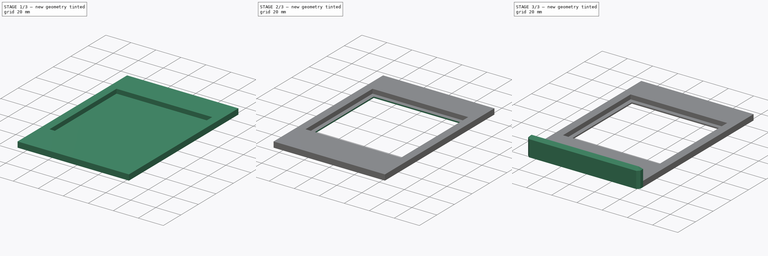
[diagram: build sequence overview — one tinted view per stage of 3, left to right]
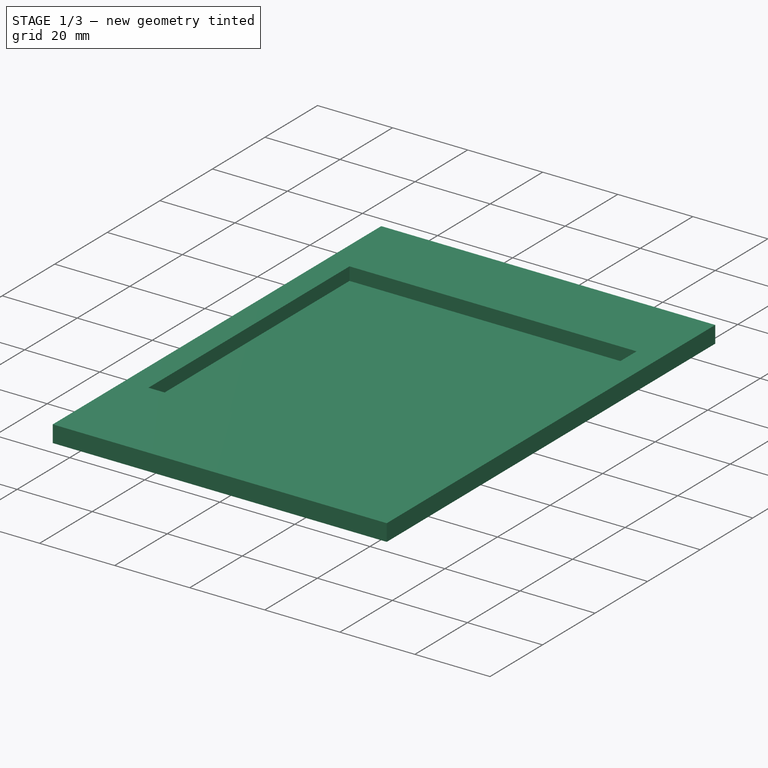
[diagram: stage 1 of 3 — iso view after this stage's code; geometry added in this stage tinted green]
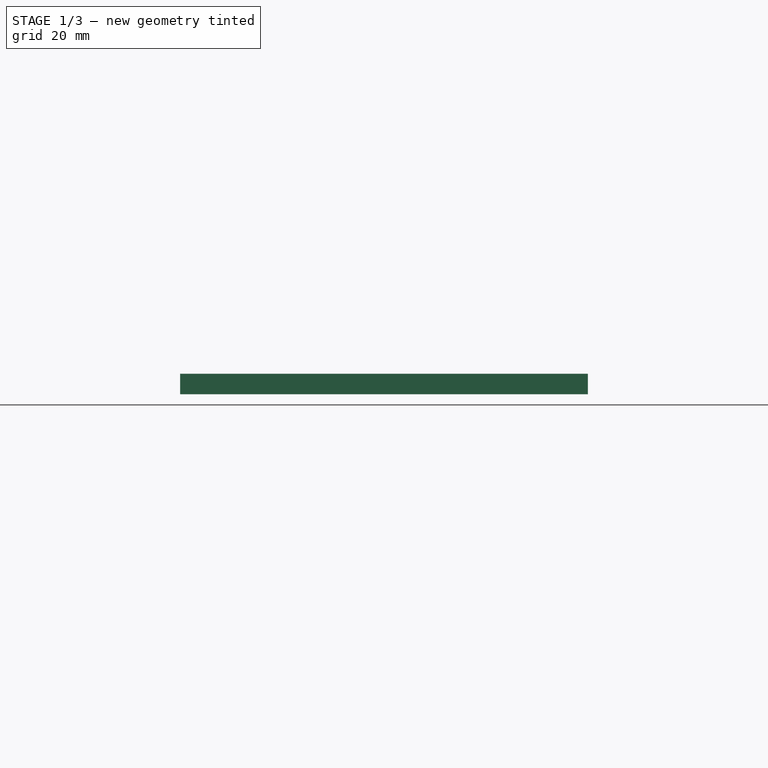
[diagram: stage 1 of 3 — front view after this stage's code; geometry added in this stage tinted green]
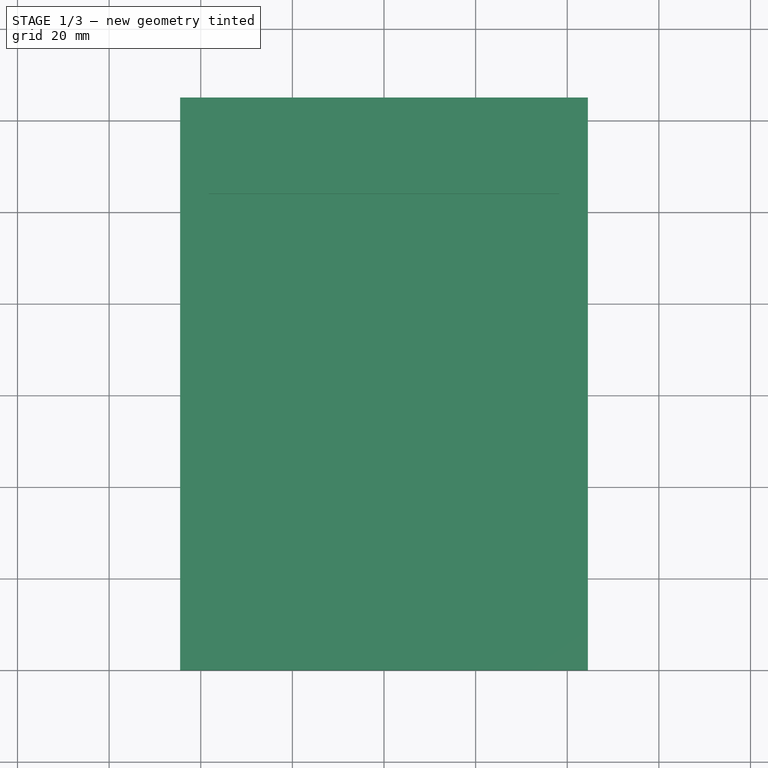
[diagram: stage 1 of 3 — top view after this stage's code; geometry added in this stage tinted green]
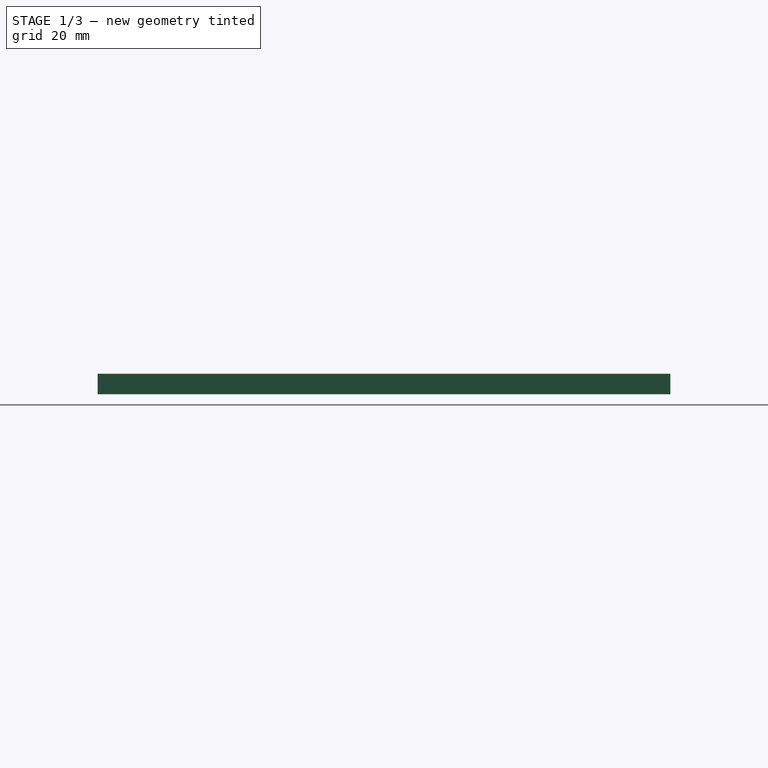
[diagram: stage 1 of 3 — right view after this stage's code; geometry added in this stage tinted green]
FCSTD DOCUMENT  (FreeCAD 2023.521R14555 (Git shallow))
Label: Lens_Filter
License: All rights reserved
objects: Sketcher::SketchObject×4, PartDesign::Pad×2, PartDesign::Pocket×2, PartDesign::Chamfer×1, PartDesign::Body×1, PartDesign::CoordinateSystem×1, App::Part×1
note: 25 computed .brp shape members not serialized (recipe doc carries the construction recipe); baked Part::Feature solids carry a one-line shape summary decoded from their .brp

FEATURE [Sketcher::SketchObject] Sketch
  ArcFitTolerance = 1e-06
  AttachmentSupport = -> [XZ_Plane]
  ExternalBSplineMaxDegree = 5
  ExternalBSplineTolerance = 0.0001
  FullyConstrained = true
  InternalTolerance = 1e-06
  InvalidShape = false
  MakeInternals = false
  MapMode = 5
  Placement = pos=(0,0,0) rot=(1,0,0;1.5708rad)
  Support = -> [XZ_Plane]
  TreeRank = 14
  ValidateShape = false
  sketch-geometry (5):
    g0: LineSegment StartX=-44.5 StartY=-2.25 StartZ=0 EndX=-44.5 EndY=2.25 EndZ=0
    g1: LineSegment StartX=-44.5 StartY=2.25 StartZ=0 EndX=44.5 EndY=2.25 EndZ=0
    g2: LineSegment StartX=44.5 StartY=2.25 StartZ=0 EndX=44.5 EndY=-2.25 EndZ=0
    g3: LineSegment StartX=44.5 StartY=-2.25 StartZ=0 EndX=-44.5 EndY=-2.25 EndZ=0
    g4: GeomPoint [constr] X=0 Y=0 Z=0
  constraints (12):
    c: Coincident(g0,g1)
    c: Coincident(g1,g2)
    c: Coincident(g2,g3)
    c: Coincident(g3,g0)
    c: Horizontal(g1)
    c: Horizontal(g3)
    c: Vertical(g0)
    c: Vertical(g2)
    c: Symmetric(g1,g0,g4)
    c: Coincident(g4,g-1)
    c: DistanceX(g1,g1) = 89
    c: DistanceY(g2,g2) = 4.5
FEATURE [PartDesign::Pad] Pad
  AddSubType = 0
  AlongSketchNormal = false
  AutoTaperInnerAngle = true
  CheckUpToFaceLimits = true
  ClaimChildren = false
  Direction = (0,-1,-2e-16)
  Fit = 0
  FitJoin = 0
  InnerFit = 0
  InnerFitJoin = 0
  InvalidShape = false
  Length = 125
  Length2 = 10
  Linearize = true
  NewSolid = false
  Profile = -> Sketch
  ReferenceAxis = -> Sketch [N_Axis]
  Reversed = true
  Suppress = false
  TaperInnerAngle = 0
  TaperInnerAngleRev = 0
  TreeRank = 15
  Type = 0
  ValidateShape = true
  _ProfileBasedVersion = 1
FEATURE [Sketcher::SketchObject] Sketch001
  ArcFitTolerance = 1e-06
  AttachmentSupport = -> [Pad]
  ExternalBSplineMaxDegree = 5
  ExternalBSplineTolerance = 0.0001
  FullyConstrained = true
  InternalTolerance = 1e-06
  InvalidShape = false
  MakeInternals = false
  MapMode = 5
  Placement = pos=(0,-5e-16,2.25) rot=(0,0,1;0rad)
  Support = -> [Pad]
  TreeRank = 16
  ValidateShape = false
  sketch-geometry (5):
    g0: LineSegment StartX=-38.25 StartY=104 StartZ=0 EndX=-38.25 EndY=27.5 EndZ=0
    g1: LineSegment StartX=-38.25 StartY=27.5 StartZ=0 EndX=38.25 EndY=27.5 EndZ=0
    g2: LineSegment StartX=38.25 StartY=27.5 StartZ=0 EndX=38.25 EndY=104 EndZ=0
    g3: LineSegment StartX=38.25 StartY=104 StartZ=0 EndX=-38.25 EndY=104 EndZ=0
    g4: GeomPoint [constr] X=0 Y=65.75 Z=0
  constraints (13):
    c: Coincident(g0,g1)
    c: Coincident(g1,g2)
    c: Coincident(g2,g3)
    c: Coincident(g3,g0)
    c: Horizontal(g1)
    c: Horizontal(g3)
    c: Vertical(g0)
    c: Vertical(g2)
    c: Symmetric(g1,g0,g4)
    c: Vertical(g4,g-1)
    c: DistanceY(g2,g2) = 76.5
    c: Equal(g2,g3)
    c: DistanceY(g-1,g0) = 27.5
FEATURE [PartDesign::Pocket] Pocket
  AddSubType = 1
  AlongSketchNormal = false
  AutoTaperInnerAngle = true
  BaseFeature = -> Pad
  CheckUpToFaceLimits = true
  ClaimChildren = false
  Direction = (0,2e-16,-1)
  Fit = 0
  FitJoin = 0
  InnerFit = 0
  InnerFitJoin = 0
  InvalidShape = false
  Length = 0
  Length2 = 10
  Linearize = true
  NewSolid = false
  Offset = -1
  Profile = -> Sketch001
  ReferenceAxis = -> Sketch001 [N_Axis]
  Suppress = false
  TaperInnerAngle = 0
  TaperInnerAngleRev = 0
  TreeRank = 17
  Type = 3
  UpToFace = -> Pad [Face4]
  ValidateShape = true
  _ProfileBasedVersion = 1
  _Version = 1
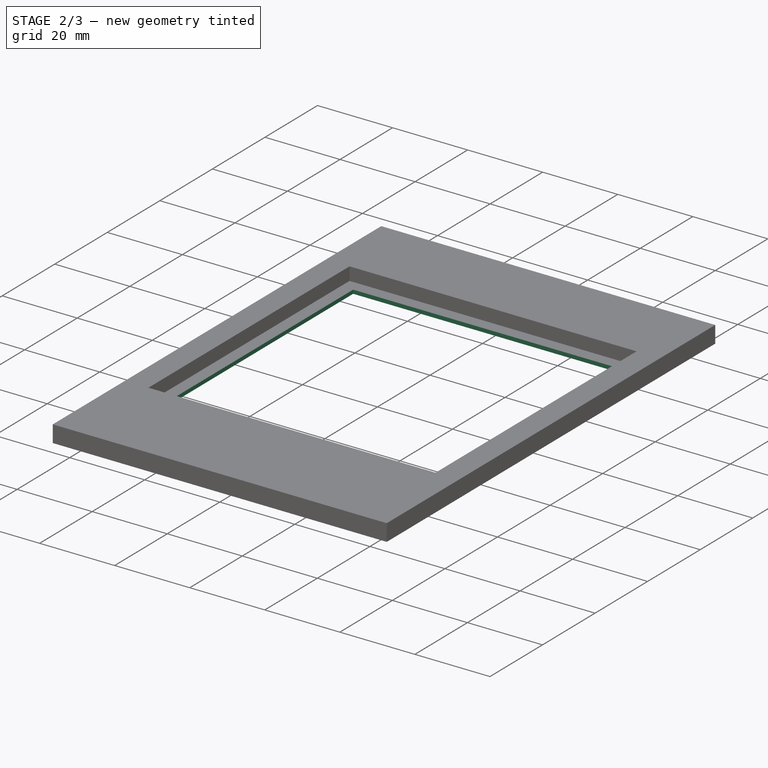
[diagram: stage 2 of 3 — iso view after this stage's code; geometry added in this stage tinted green]
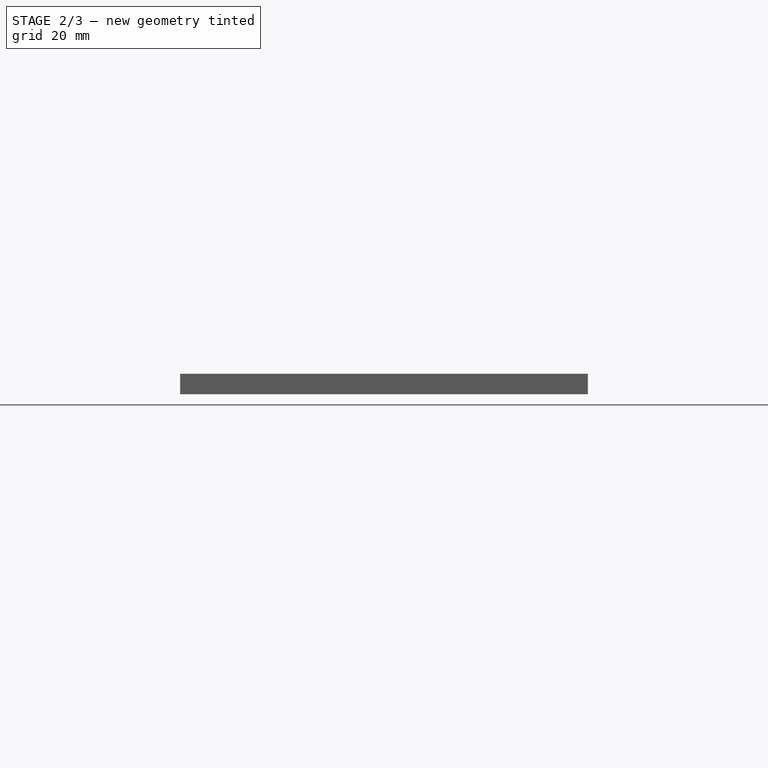
[diagram: stage 2 of 3 — front view after this stage's code; geometry added in this stage tinted green]
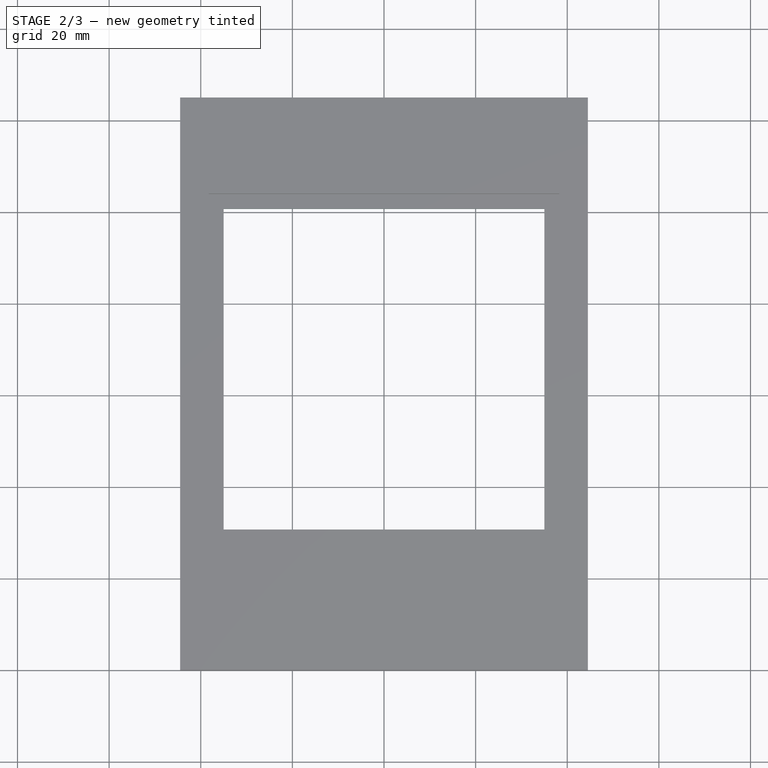
[diagram: stage 2 of 3 — top view after this stage's code; geometry added in this stage tinted green]
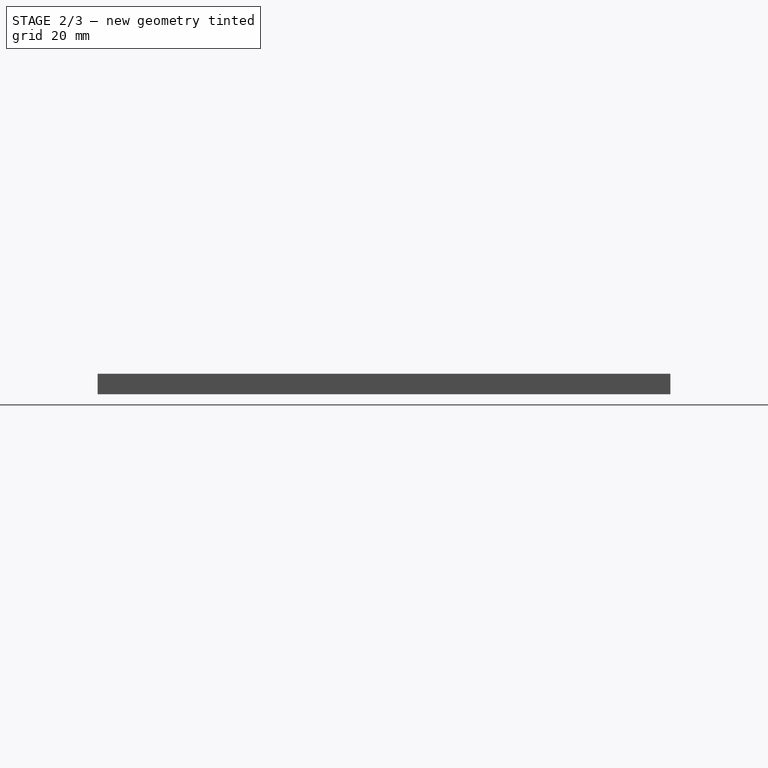
[diagram: stage 2 of 3 — right view after this stage's code; geometry added in this stage tinted green]
FEATURE [Sketcher::SketchObject] Sketch002
  ArcFitTolerance = 1e-06
  AttachmentSupport = -> [Pocket]
  ExternalBSplineMaxDegree = 5
  ExternalBSplineTolerance = 0.0001
  ExternalGeometry = -> [Pocket]
  FullyConstrained = true
  InternalTolerance = 1e-06
  InvalidShape = false
  MakeInternals = false
  MapMode = 5
  Placement = pos=(0,3e-16,-1.25) rot=(0,0,1;0rad)
  Support = -> [Pocket]
  TreeRank = 18
  ValidateShape = false
  sketch-geometry (5):
    g0: LineSegment StartX=-35 StartY=30.75 StartZ=0 EndX=-35 EndY=100.75 EndZ=0
    g1: LineSegment StartX=-35 StartY=100.75 StartZ=0 EndX=35 EndY=100.75 EndZ=0
    g2: LineSegment StartX=35 StartY=100.75 StartZ=0 EndX=35 EndY=30.75 EndZ=0
    g3: LineSegment StartX=35 StartY=30.75 StartZ=0 EndX=-35 EndY=30.75 EndZ=0
    g4: GeomPoint [constr] X=4e-16 Y=65.75 Z=0
  constraints (12):
    c: Coincident(g0,g1)
    c: Coincident(g1,g2)
    c: Coincident(g2,g3)
    c: Coincident(g3,g0)
    c: Horizontal(g1)
    c: Horizontal(g3)
    c: Vertical(g0)
    c: Vertical(g2)
    c: Symmetric(g1,g0,g4)
    c: Symmetric(g-3,g-4,g4)
    c: Equal(g2,g1)
    c: DistanceY(g2,g2) = 70
FEATURE [PartDesign::Pocket] Pocket001
  AddSubType = 1
  AlongSketchNormal = false
  AutoTaperInnerAngle = true
  BaseFeature = -> Pocket
  CheckUpToFaceLimits = true
  ClaimChildren = false
  Direction = (0,2e-16,-1)
  Fit = 0
  FitJoin = 0
  InnerFit = 0
  InnerFitJoin = 0
  InvalidShape = false
  Length = 5
  Length2 = 10
  Linearize = true
  Midplane = true
  NewSolid = false
  Profile = -> Sketch002
  ReferenceAxis = -> Sketch002 [N_Axis]
  Suppress = false
  TaperInnerAngle = 0
  TaperInnerAngleRev = 0
  TreeRank = 19
  Type = 1
  ValidateShape = true
  _ProfileBasedVersion = 1
  _Version = 1
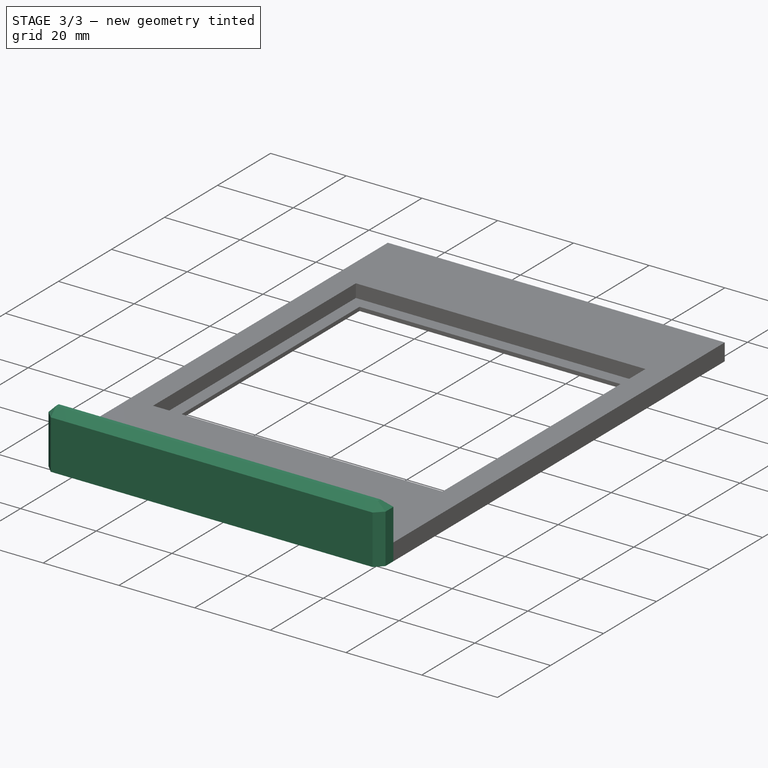
[diagram: stage 3 of 3 — iso view after this stage's code; geometry added in this stage tinted green]
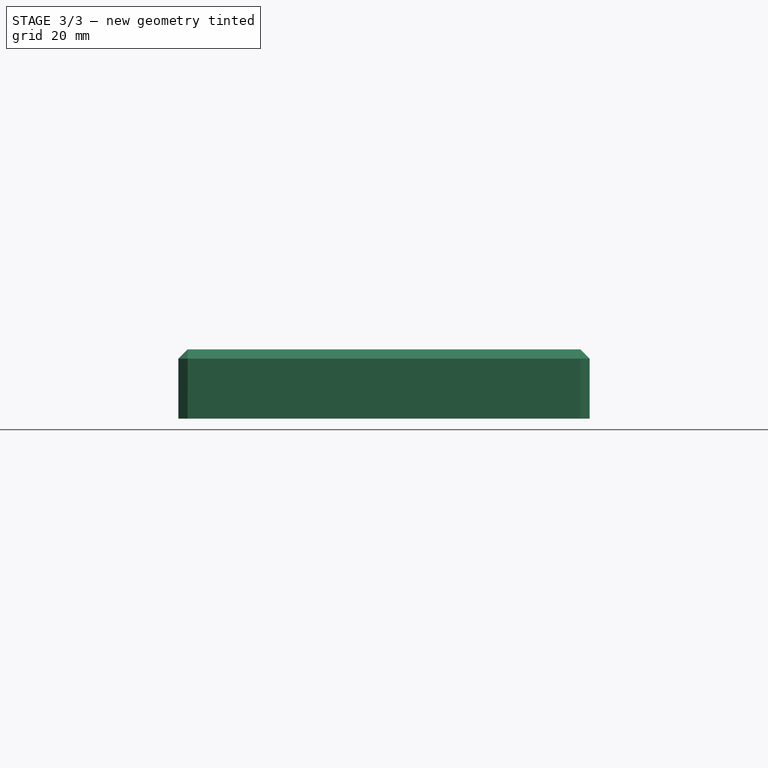
[diagram: stage 3 of 3 — front view after this stage's code; geometry added in this stage tinted green]
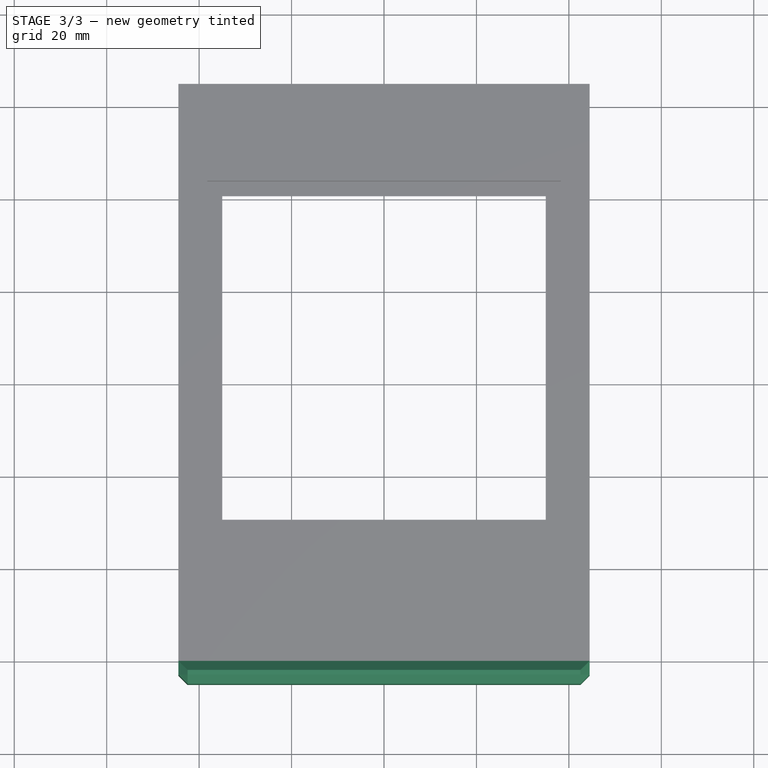
[diagram: stage 3 of 3 — top view after this stage's code; geometry added in this stage tinted green]
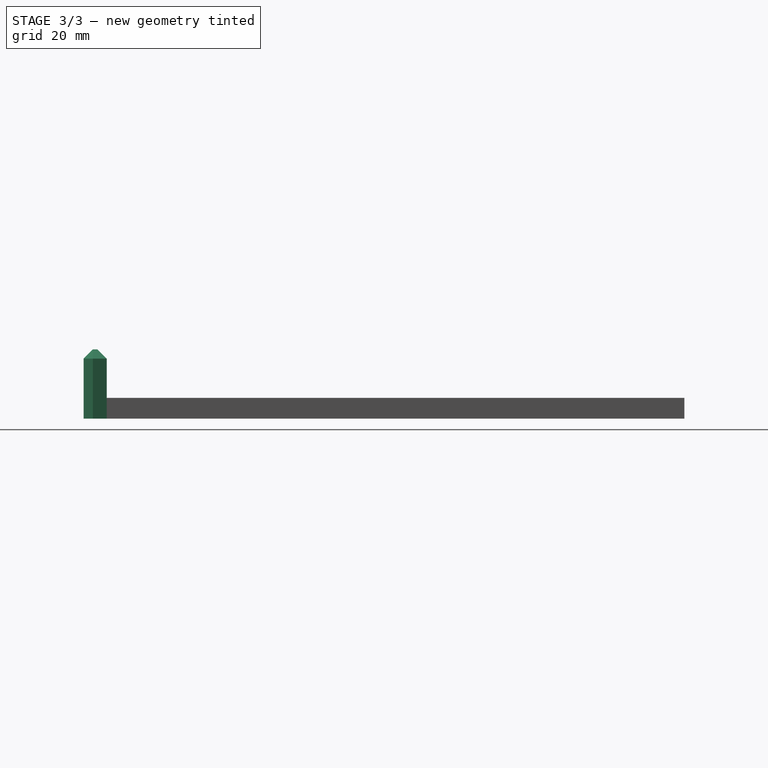
[diagram: stage 3 of 3 — right view after this stage's code; geometry added in this stage tinted green]
FEATURE [Sketcher::SketchObject] Sketch003
  ArcFitTolerance = 1e-06
  AttachmentSupport = -> [Pocket001]
  ExternalBSplineMaxDegree = 5
  ExternalBSplineTolerance = 0.0001
  ExternalGeometry = -> [Pocket001]
  FullyConstrained = true
  InternalTolerance = 1e-06
  InvalidShape = false
  MakeInternals = false
  MapMode = 5
  Placement = pos=(0,0,0) rot=(1,0,0;1.5708rad)
  Support = -> [Pocket001]
  TreeRank = 20
  ValidateShape = false
  sketch-geometry (5):
    g0: LineSegment StartX=-44.5 StartY=12.75 StartZ=0 EndX=-44.5 EndY=-2.25 EndZ=0
    g1: LineSegment StartX=-44.5 StartY=-2.25 StartZ=0 EndX=44.5 EndY=-2.25 EndZ=0
    g2: LineSegment StartX=44.5 StartY=-2.25 StartZ=0 EndX=44.5 EndY=12.75 EndZ=0
    g3: LineSegment StartX=44.5 StartY=12.75 StartZ=0 EndX=-44.5 EndY=12.75 EndZ=0
    g4: GeomPoint [constr] X=0 Y=5.25 Z=0
  constraints (12):
    c: Coincident(g0,g1)
    c: Coincident(g1,g2)
    c: Coincident(g2,g3)
    c: Coincident(g3,g0)
    c: Horizontal(g1)
    c: Horizontal(g3)
    c: Vertical(g0)
    c: Vertical(g2)
    c: Symmetric(g1,g0,g4)
    c: PointOnObject(g4,g-2)
    c: Coincident(g0,g-3)
    c: DistanceY(g2,g2) = 15
FEATURE [PartDesign::Pad] Pad001
  AddSubType = 0
  AlongSketchNormal = false
  AutoTaperInnerAngle = true
  BaseFeature = -> Pocket001
  CheckUpToFaceLimits = true
  ClaimChildren = false
  Direction = (0,-1,-2e-16)
  Fit = 0
  FitJoin = 0
  InnerFit = 0
  InnerFitJoin = 0
  InvalidShape = false
  Length = 5
  Length2 = 10
  Linearize = true
  NewSolid = false
  Profile = -> Sketch003
  ReferenceAxis = -> Sketch003 [N_Axis]
  Suppress = false
  TaperInnerAngle = 0
  TaperInnerAngleRev = 0
  TreeRank = 21
  Type = 0
  ValidateShape = true
  _ProfileBasedVersion = 1
FEATURE [PartDesign::Chamfer] Chamfer
  AddSubType = 0
  Angle = 45
  Base = -> Pad001 [Edge46,Edge45,Edge36,Edge19,Edge22,Edge47]
  BaseFeature = -> Pad001
  ChamferType = 0
  FlipDirection = false
  InvalidShape = false
  NewSolid = false
  Size = 2
  Size2 = 1
  SupportTransform = false
  Suppress = false
  TreeRank = 22
  UseAllEdges = false
  ValidateShape = true
FEATURE [PartDesign::Body] Body
  AutoGroupSolids = false
  ClaimAllChildren = false
  ExportMode = 0
  Group = -> [Sketch,Pad,Sketch001,Pocket,Sketch002,Pocket001,Sketch003,Pad001,Chamfer]
  InvalidShape = false
  Origin = -> Origin001
  Tip = -> Chamfer
  TreeRank = 13
  ValidateShape = false
  _ExportChildren = -> [Pad,Pocket,Pocket001,Pad001,Chamfer]
  _GroupVersion = 1
FEATURE [PartDesign::CoordinateSystem] Local_CS  label="Filter"
  AttacherType = Attacher::AttachEngine3D
  AttachmentSupport = -> [Chamfer]
  InvalidShape = false
  MapMode = 5
  Placement = pos=(0,125,2.78e-14) rot=(0,0.707107,0.707107;3.14159rad)
  Support = -> [Chamfer]
  TreeRank = 23
  ValidateShape = false
FEATURE [App::Part] Part  label="Filter001"
  ClaimAllChildren = false
  ExportMode = 1
  Group = -> [Body,Local_CS]
  Origin = -> Origin
  TreeRank = 3
  _ExportChildren = -> [Body,Local_CS]
  _GroupVersion = 1
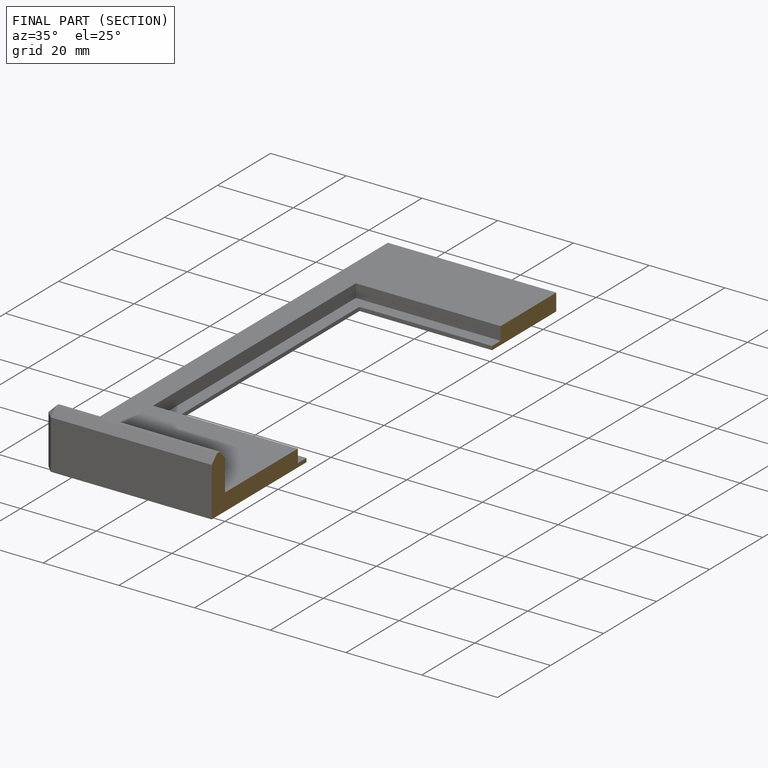
[diagram: finished part — half-section view (interior)]
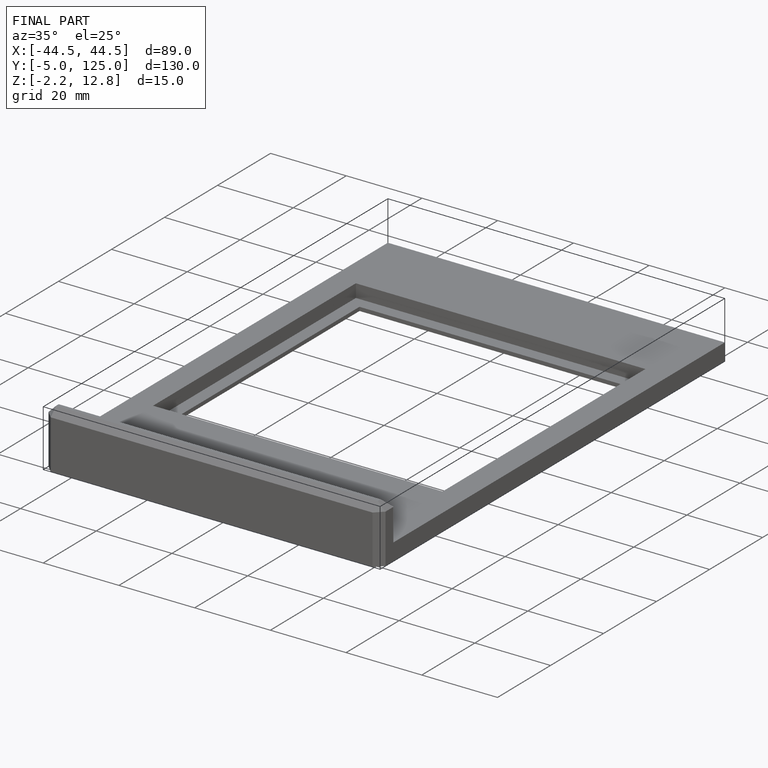
[diagram: finished part — iso view with bounding-box wireframe]
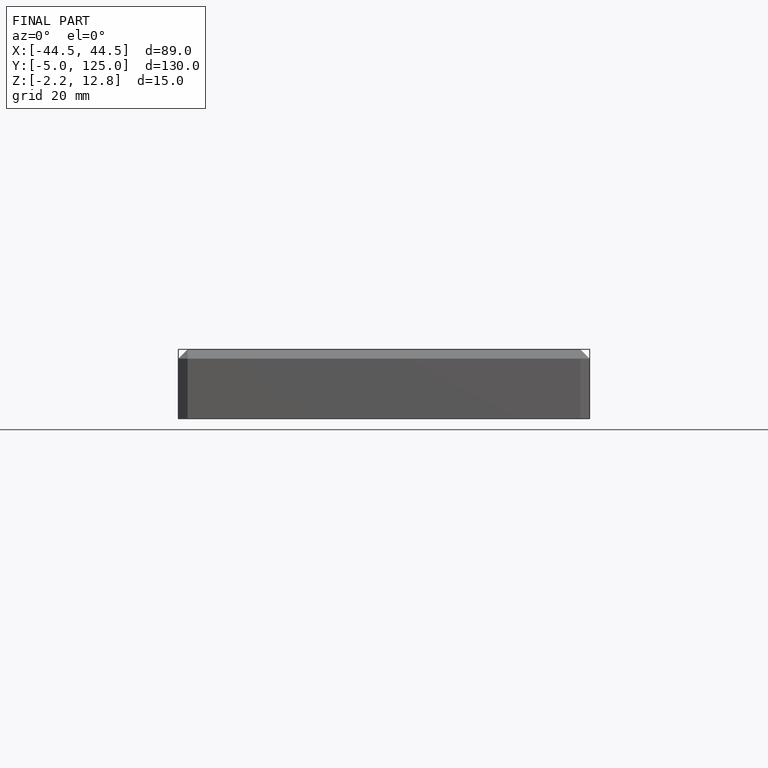
[diagram: finished part — front view with bounding-box wireframe]
